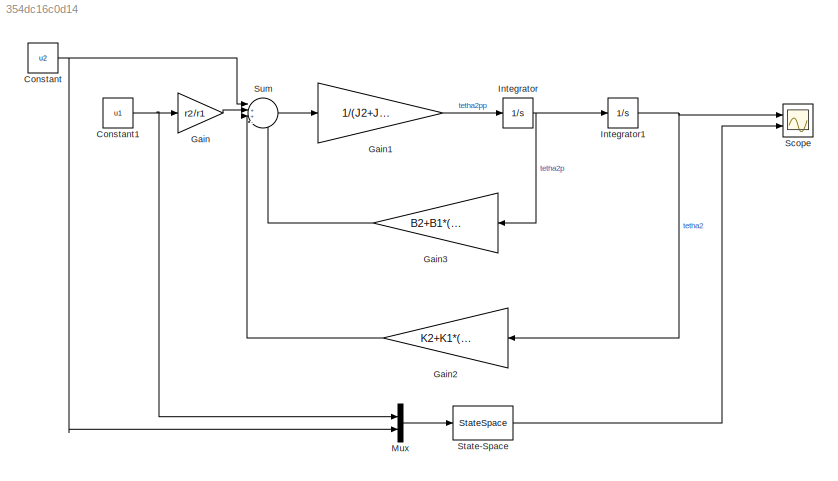
MODEL slx_354dc16c0d14
KIND model
CONFIG AbsTol = auto
CONFIG EnableMultiTasking = off
CONFIG FixedStep = auto
CONFIG MaxStep = auto
CONFIG MinStep = auto
CONFIG RelTol = 1e-3
CONFIG SampleTimeConstraint = Unconstrained
CONFIG SolverName = VariableStepAuto
CONFIG StartTime = 0.0
CONFIG StopTime = 40
BLOCK [Constant] Constant
  Value = u2
BLOCK [Constant] Constant1
  Value = u1
BLOCK [Gain] Gain
  Gain = r2/r1
BLOCK [Gain] Gain1
  Gain = 1/(J2+J1*(r2/r1)^2)
BLOCK [Gain] Gain2
  Gain = K2+K1*(r2/r1)^2
  NameLocation = top
BLOCK [Gain] Gain3
  Gain = B2+B1*(r2/r1)^2
  NameLocation = top
BLOCK [Integrator] Integrator
  Ports = [1, 1]
BLOCK [Integrator] Integrator1
  Ports = [1, 1]
BLOCK [Mux] Mux
  DisplayOption = bar
  Inputs = 2
  Ports = [2, 1]
BLOCK [Scope] Scope
  Floating = off
  NumInputPorts = 2
  Ports = [2]
  ScopeSpecificationString = Simulink.scopes.TimeScopeBlockCfg('CurrentConfiguration', extmgr.ConfigurationSet(extmgr.Configuration('Core','General UI',true),extmgr.Configuration('Core','Source UI',true),extmgr.Configuration('Sources','WiredSimulink',true),extmgr.Configuration('Visuals','Time Domain',true,'SerializedDisplays',{struct('MinYLimReal','-0.00477','MaxYLimReal','0.04293','YLabelReal','','MinYLimMag','0.00000','MaxY...<+1440ch>
BLOCK [StateSpace] State-Space
  A = A
  B = B
  C = C
  D = D
  InitialCondition = 0
  Ports = [1, 1]
BLOCK [Sum] Sum
  Inputs = |++--
  Ports = [4, 1]
NET Constant1:1 -> Gain:1, Mux:1
NET Constant:1 -> Mux:2, Sum:1
LINE Gain1:1 -> Integrator:1
LINE Gain2:1 -> Sum:3
LINE Gain3:1 -> Sum:4
LINE Gain:1 -> Sum:2
NET Integrator1:1 -> Gain2:1, Scope:1
NET Integrator:1 -> Gain3:1, Integrator1:1
LINE Mux:1 -> State-Space:1
LINE State-Space:1 -> Scope:2
LINE Sum:1 -> Gain1:1
note: NET lines group one-source signal fan-out (src -> all destinations, sorted); 1:1 wires keep LINE
